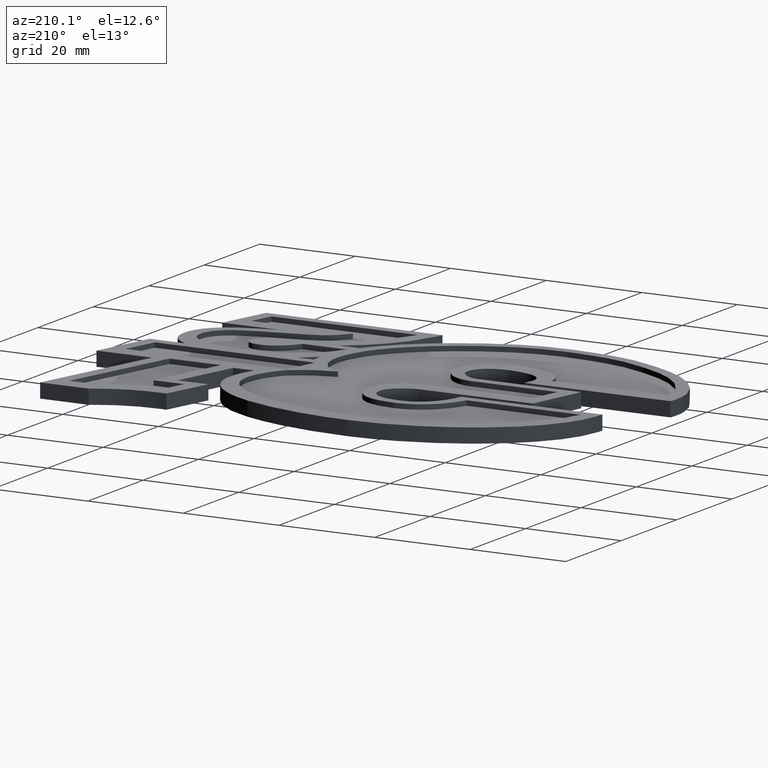
[diagram: clean part render]
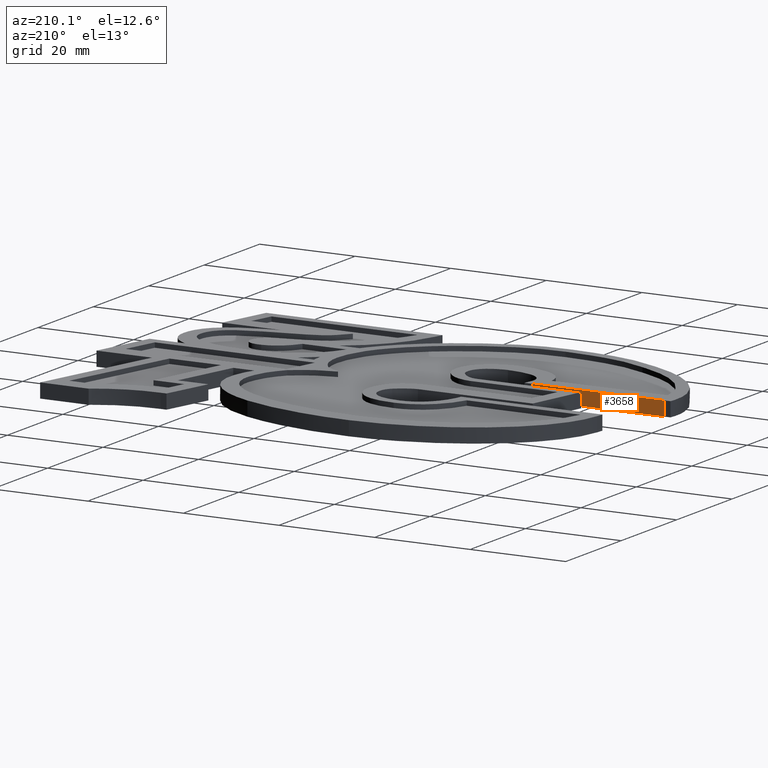
[diagram: same view with one face highlighted and labeled with its STEP entity id]
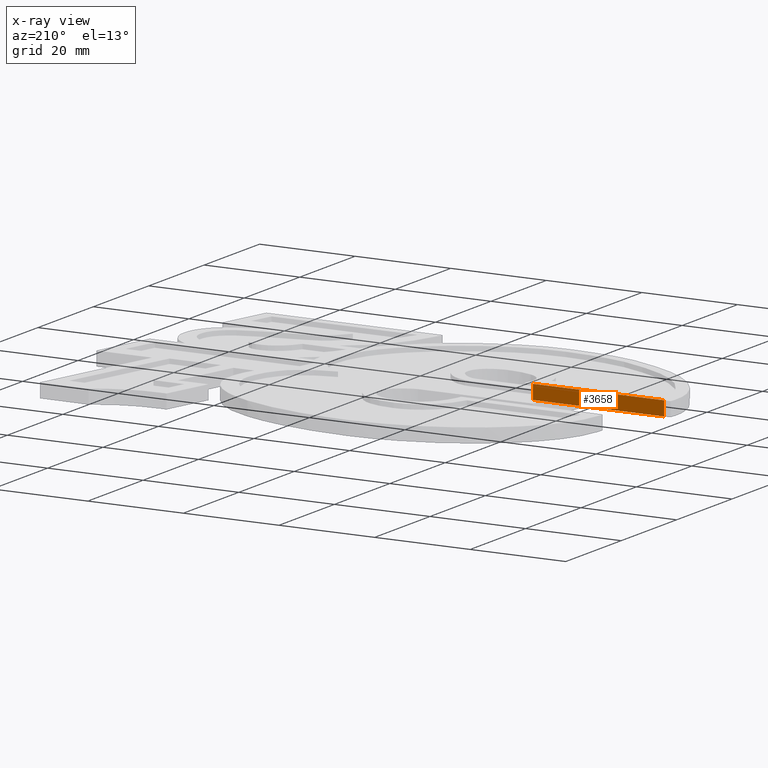
[diagram: x-ray of the same camera — body ghosted, the highlighted face saturated]
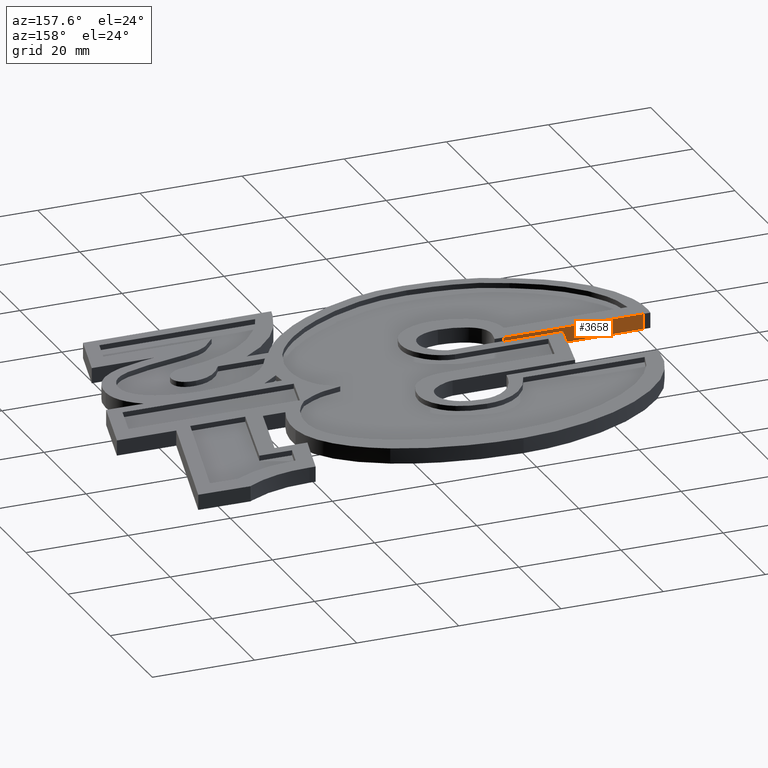
[diagram: same view with one face highlighted and labeled with its STEP entity id]
A machine part, auxiliary view. The second image highlights one B-rep face of the part: STEP entity #3658.
The next image is the same camera in x-ray: the body ghosted, the highlighted face saturated — about 0% of this face is hidden behind the body in this view.
A second angle (auxiliary view) of the same face is appended — the face is thin or edge-on in the first view.
In plain terms, the highlighted planar face has unit normal (0.0025, -1, 0).
Its self-contained STEP definition (entity closure, byte-faithful):
#497 = VECTOR ( 'NONE', #4580, 1000.000000000000000 ) ;
#517 = VECTOR ( 'NONE', #4649, 1000.000000000000000 ) ;
#526 = VECTOR ( 'NONE', #4522, 1000.000000000000000 ) ;
#785 = AXIS2_PLACEMENT_3D ( 'NONE', #5345, #5351, #5352 ) ;
#1044 = EDGE_LOOP ( 'NONE', ( #5612, #5592, #5635, #5579 ) ) ;
#1969 = CARTESIAN_POINT ( 'NONE',  ( 67.82032197740257100, 134.8093424142143100, -2.000000000000000000 ) ) ;
#1970 = CARTESIAN_POINT ( 'NONE',  ( 40.45868461445130700, 134.7407850140578800, -2.000000000000000000 ) ) ;
#1977 = CARTESIAN_POINT ( 'NONE',  ( 40.45868461445130700, 134.7407850140578800, 1.000000000000000000 ) ) ;
#2037 = CARTESIAN_POINT ( 'NONE',  ( 67.82032197740257100, 134.8093424142143100, 1.000000000000000000 ) ) ;
#2828 = VECTOR ( 'NONE', #4434, 1000.000000000000100 ) ;
#2888 = VERTEX_POINT ( 'NONE', #1969 ) ;
#2891 = VERTEX_POINT ( 'NONE', #1970 ) ;
#2921 = VERTEX_POINT ( 'NONE', #1977 ) ;
#3128 = VERTEX_POINT ( 'NONE', #2037 ) ;
#3481 = EDGE_CURVE ( 'NONE', #2891, #2888, #4432, .T. ) ;
#3500 = EDGE_CURVE ( 'NONE', #3128, #2921, #4520, .T. ) ;
#3510 = EDGE_CURVE ( 'NONE', #3128, #2888, #4569, .T. ) ;
#3523 = EDGE_CURVE ( 'NONE', #2921, #2891, #4646, .T. ) ;
#3658 = ADVANCED_FACE ( 'NONE', ( #5349 ), #5343, .F. ) ;
#4432 = LINE ( 'NONE', #4433, #2828 ) ;
#4433 = CARTESIAN_POINT ( 'NONE',  ( 40.45868461445130700, 134.7407850140578800, -2.000000000000000000 ) ) ;
#4434 = DIRECTION ( 'NONE',  ( 0.9999968609916295400, 0.002505595116431475800, 0.0000000000000000000 ) ) ;
#4520 = LINE ( 'NONE', #4521, #526 ) ;
#4521 = CARTESIAN_POINT ( 'NONE',  ( 96.28752795354374400, 134.8806699303842400, 1.000000000000000000 ) ) ;
#4522 = DIRECTION ( 'NONE',  ( -0.9999968609916295400, -0.002505595116431476200, 0.0000000000000000000 ) ) ;
#4569 = LINE ( 'NONE', #4578, #497 ) ;
#4578 = CARTESIAN_POINT ( 'NONE',  ( 67.82032197740257100, 134.8093424142143100, 1.000000000000000000 ) ) ;
#4580 = DIRECTION ( 'NONE',  ( -0.0000000000000000000, -0.0000000000000000000, -1.000000000000000000 ) ) ;
#4646 = LINE ( 'NONE', #4648, #517 ) ;
#4648 = CARTESIAN_POINT ( 'NONE',  ( 40.45868461445130700, 134.7407850140578800, 1.000000000000000000 ) ) ;
#4649 = DIRECTION ( 'NONE',  ( -0.0000000000000000000, -0.0000000000000000000, -1.000000000000000000 ) ) ;
#5343 = PLANE ( 'NONE',  #785 ) ;
#5345 = CARTESIAN_POINT ( 'NONE',  ( 96.28752795354374400, 134.8806699303842400, 1.000000000000000000 ) ) ;
#5349 = FACE_OUTER_BOUND ( 'NONE', #1044, .T. ) ;
#5351 = DIRECTION ( 'NONE',  ( 0.002505595116431476200, -0.9999968609916296500, 0.0000000000000000000 ) ) ;
#5352 = DIRECTION ( 'NONE',  ( 0.9999968609916295400, 0.002505595116431475800, 0.0000000000000000000 ) ) ;
#5579 = ORIENTED_EDGE ( 'NONE', *, *, #3500, .F. ) ;
#5592 = ORIENTED_EDGE ( 'NONE', *, *, #3481, .F. ) ;
#5612 = ORIENTED_EDGE ( 'NONE', *, *, #3510, .T. ) ;
#5635 = ORIENTED_EDGE ( 'NONE', *, *, #3523, .F. ) ;